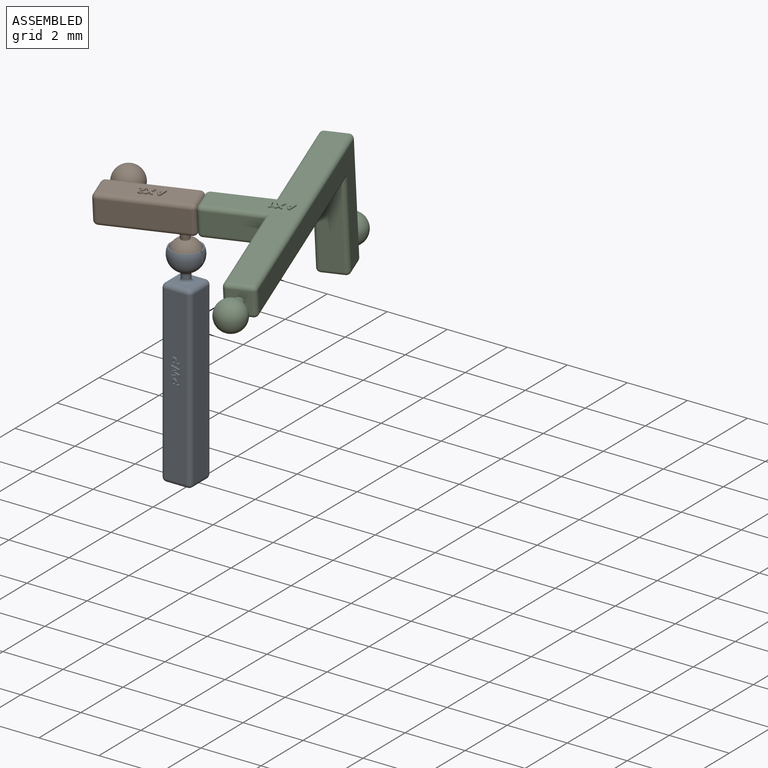
[diagram: assembled view]
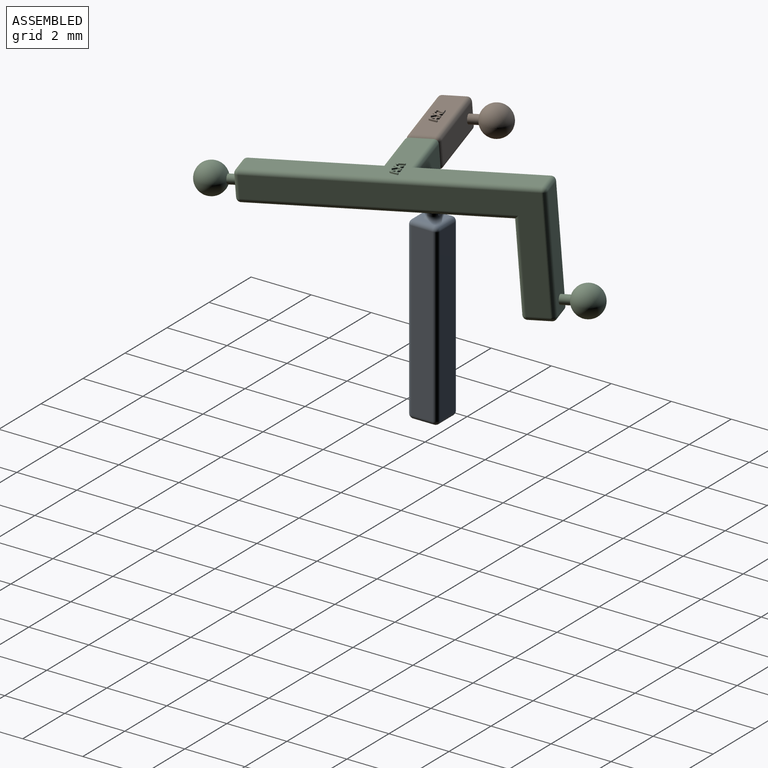
[diagram: assembled view, second angle]
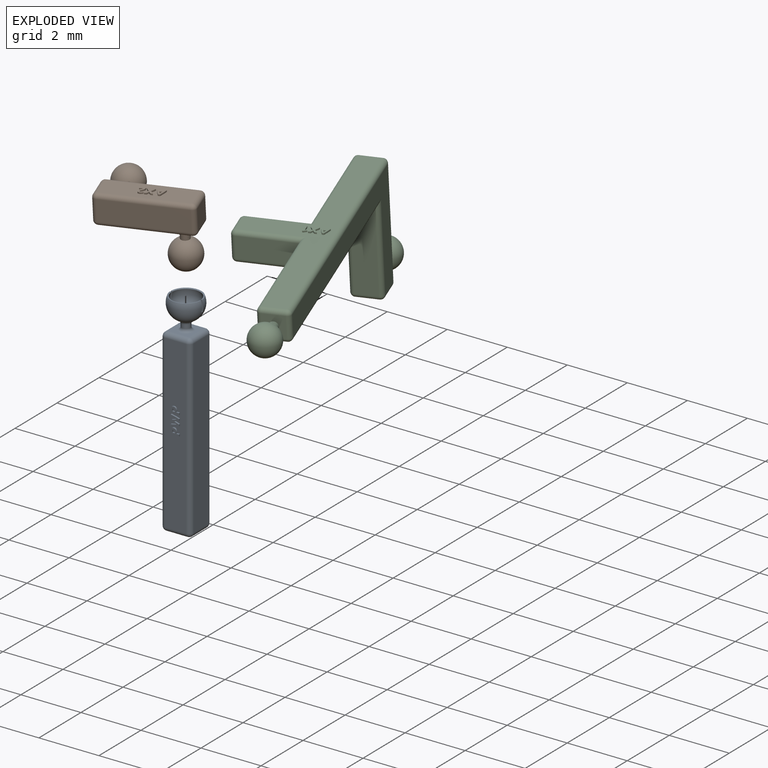
[diagram: exploded view]
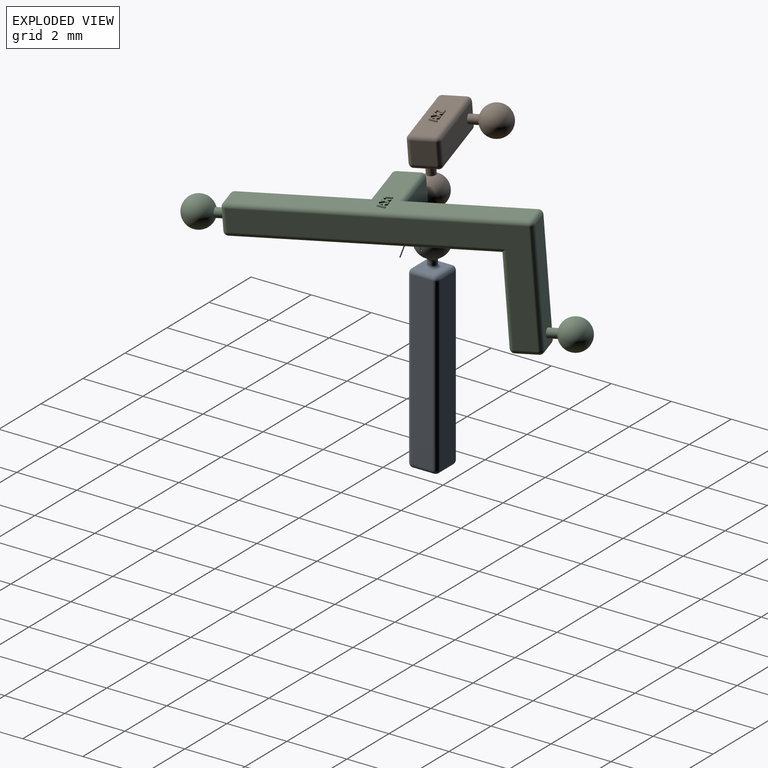
[diagram: exploded view, second angle]
FCSTD DOCUMENT  (FreeCAD 0.20R29177 (Git))
Label: assembly3wb_test
License: All rights reserved
LicenseURL: http://en.wikipedia.org/wiki/All_rights_reserved
objects: App::FeaturePython×25, Part::FeaturePython×16, App::Link×4
note: 15 computed .brp shape members not serialized (recipe doc carries the construction recipe); baked Part::Feature solids carry a one-line shape summary decoded from their .brp
EXTERNAL_REF file=pwp.FCStd obj=Body
EXTERNAL_REF file=ax2.FCStd obj=Body003
EXTERNAL_REF file=ax1.FCStd obj=Body004
EXTERNAL_REF file=radial_vein.FCStd obj=Body

FEATURE [App::Link] Link  label="Body"
  LinkPlacement = pos=(0.5,0,0.5) rot=(0,-1,0;1.5708rad)
  LinkedObject = -> <external pwp.FCStd>#Body
  Placement = pos=(0.5,0,0.5) rot=(0,-1,0;1.5708rad)
FEATURE [App::Link] Link001  label="AX2Body"
  LinkPlacement = pos=(-0.445138,-0.402361,5.6036) rot=(-0.002707,-0.040053,0.999194;3.44639rad)
  LinkedObject = -> <external ax2.FCStd>#Body003
  Placement = pos=(-0.445138,-0.402361,5.6036) rot=(-0.002707,-0.040053,0.999194;3.44639rad)
FEATURE [App::Link] Link002  label="CombinedArmBody"
  LinkPlacement = pos=(3.37043,0.796236,5.67282) rot=(0.050454,0.044065,-0.997754;1.2679rad)
  LinkedObject = -> <external ax1.FCStd>#Body004
  Placement = pos=(3.37043,0.796236,5.67282) rot=(0.050454,0.044065,-0.997754;1.2679rad)
FEATURE [App::Link] Link003  label="Body001"
  LinkPlacement = pos=(-6.34873,-3.26135,4.9153) rot=(0.2523,-0.017054,0.967499;0.315124rad)
  LinkedObject = -> <external radial_vein.FCStd>#Body
  Placement = pos=(-6.34873,-3.26135,4.9153) rot=(0.2523,-0.017054,0.967499;0.315124rad)
FEATURE [Part::FeaturePython] Parts  # WARN: FeaturePython — macro-defined, semantics opaque (R4)
  Group = -> [Link,Link001,Link002,Link003]
  GroupMode = 0
FEATURE [Part::FeaturePython] Assembly  # WARN: FeaturePython — macro-defined, semantics opaque (R4)
  AutoRelax = true
  BuildShape = 0
  Freeze = false
  Group = -> [Constraints,Elements,Parts]
  Verbose = false
  _SolverType = 1
  _Version = 1
FEATURE [App::FeaturePython] Constraints  # WARN: FeaturePython — macro-defined, semantics opaque (R4)
  Group = -> [Constraint,Constraint001,Constraint002,Constraint003,Constraint004,Constraint005,Constraint006,Constraint007]
  _Version = 1
FEATURE [App::FeaturePython] Elements  # WARN: FeaturePython — macro-defined, semantics opaque (R4)
  Group = -> [_Element,_Element001,_Element002,_Element003,_Element004,_Element005,_Element006,_Element007,_Element008,_Element009,_Element010,_Element011,_Element012,_Element013]
FEATURE [App::FeaturePython] Constraint  label="Locked"  # WARN: FeaturePython — macro-defined, semantics opaque (R4)
  Disabled = false
  Group = -> [ElementLink]
  _ConstraintType = 0
  _Parent = -> Constraints
FEATURE [App::FeaturePython] ElementLink  label="_Element"  # link proxy (typed FeaturePython)
  LinkTransform = true
  LinkedObject = -> _Element
  _Parent = -> Constraint
FEATURE [Part::FeaturePython] _Element  # link proxy (typed FeaturePython)
  Detach = false
  LinkTransform = true
  LinkedObject = -> Link [Pad002.Face98]
  _Parent = -> Elements
FEATURE [Part::FeaturePython] _Element001  label="DatumPoint@AX2Body@"  # link proxy (typed FeaturePython)
  Detach = false
  LinkTransform = true
  LinkedObject = -> Link001 [DatumPoint.Point]
  _Parent = -> Elements
FEATURE [App::FeaturePython] Constraint001  label="PointsCoincident"  # WARN: FeaturePython — macro-defined, semantics opaque (R4)
  Disabled = false
  Group = -> [ElementLink001,ElementLink002]
  _ConstraintType = 1
  _Parent = -> Constraints
FEATURE [App::FeaturePython] ElementLink001  label="DatumPoint@Body@"  # link proxy (typed FeaturePython)
  LinkTransform = true
  LinkedObject = -> _Element002
  _Parent = -> Constraint001
FEATURE [Part::FeaturePython] _Element002  label="DatumPoint@Body@"  # link proxy (typed FeaturePython)
  Detach = false
  LinkTransform = true
  LinkedObject = -> Link [DatumPoint.]
  _Parent = -> Elements
FEATURE [App::FeaturePython] ElementLink002  label="DatumPoint@AX2Body@001"  # link proxy (typed FeaturePython)
  LinkTransform = true
  LinkedObject = -> _Element003
  _Parent = -> Constraint001
FEATURE [Part::FeaturePython] _Element003  label="DatumPoint@AX2Body@001"  # link proxy (typed FeaturePython)
  Detach = false
  LinkTransform = true
  LinkedObject = -> Link001 [DatumPoint.]
  _Parent = -> Elements
FEATURE [App::FeaturePython] Constraint002  label="PlaneAlignment"  # WARN: FeaturePython — macro-defined, semantics opaque (R4)
  Angle = 0
  AnglePitch = 0
  AngleRoll = 0
  Cascade = false
  Disabled = false
  Group = -> [ElementLink003,ElementLink004]
  LockAngle = false
  _ConstraintType = 37
  _Parent = -> Constraints
FEATURE [App::FeaturePython] ElementLink003  label="_Element004"  # link proxy (typed FeaturePython)
  LinkTransform = true
  LinkedObject = -> _Element004
  _Parent = -> Constraint002
FEATURE [Part::FeaturePython] _Element004  # link proxy (typed FeaturePython)
  Detach = false
  LinkTransform = true
  LinkedObject = -> Link002 [Pad006.Face74]
  _Parent = -> Elements
FEATURE [App::FeaturePython] ElementLink004  label="_Element005"  # link proxy (typed FeaturePython)
  LinkTransform = true
  LinkedObject = -> _Element005
  _Parent = -> Constraint002
FEATURE [Part::FeaturePython] _Element005  # link proxy (typed FeaturePython)
  Detach = false
  LinkTransform = true
  LinkedObject = -> Link001 [Pad002.Face12]
  _Parent = -> Elements
FEATURE [App::FeaturePython] Constraint003  label="PlaneAlignment001"  # WARN: FeaturePython — macro-defined, semantics opaque (R4)
  Angle = 0
  AnglePitch = 0
  AngleRoll = 0
  Cascade = false
  Disabled = false
  Group = -> [ElementLink005,ElementLink006]
  LockAngle = false
  _ConstraintType = 37
  _Parent = -> Constraints
FEATURE [App::FeaturePython] ElementLink005  label="_Element006"  # link proxy (typed FeaturePython)
  LinkTransform = true
  LinkedObject = -> _Element006
  _Parent = -> Constraint003
FEATURE [Part::FeaturePython] _Element006  # link proxy (typed FeaturePython)
  Detach = false
  LinkTransform = true
  LinkedObject = -> Link001 [Pad002.Face9]
  _Parent = -> Elements
FEATURE [App::FeaturePython] ElementLink006  label="_Element007"  # link proxy (typed FeaturePython)
  LinkTransform = true
  LinkedObject = -> _Element007
  _Parent = -> Constraint003
FEATURE [Part::FeaturePython] _Element007  # link proxy (typed FeaturePython)
  Detach = false
  LinkTransform = true
  LinkedObject = -> Link002 [Pad006.Face73]
  _Parent = -> Elements
FEATURE [App::FeaturePython] Constraint004  label="PlaneAlignment002"  # WARN: FeaturePython — macro-defined, semantics opaque (R4)
  Angle = 0
  AnglePitch = 0
  AngleRoll = 0
  Cascade = false
  Disabled = false
  Group = -> [ElementLink007,ElementLink008]
  LockAngle = false
  _ConstraintType = 37
  _Parent = -> Constraints
FEATURE [App::FeaturePython] ElementLink007  label="_Element008"  # link proxy (typed FeaturePython)
  LinkTransform = true
  LinkedObject = -> _Element008
  _Parent = -> Constraint004
FEATURE [Part::FeaturePython] _Element008  # link proxy (typed FeaturePython)
  Detach = false
  LinkTransform = true
  LinkedObject = -> Link001 [Pad002.Face27]
  _Parent = -> Elements
FEATURE [App::FeaturePython] ElementLink008  label="_Element009"  # link proxy (typed FeaturePython)
  LinkTransform = true
  LinkedObject = -> _Element009
  _Parent = -> Constraint004
FEATURE [Part::FeaturePython] _Element009  # link proxy (typed FeaturePython)
  Detach = false
  LinkTransform = true
  LinkedObject = -> Link002 [Pad006.Face4]
  _Parent = -> Elements
FEATURE [App::FeaturePython] Constraint005  label="PlaneAlignment003"  # WARN: FeaturePython — macro-defined, semantics opaque (R4)
  Angle = 0
  AnglePitch = 0
  AngleRoll = 0
  Cascade = false
  Disabled = false
  Group = -> [ElementLink009,ElementLink010]
  LockAngle = false
  _ConstraintType = 37
  _Parent = -> Constraints
FEATURE [App::FeaturePython] ElementLink009  label="_Element010"  # link proxy (typed FeaturePython)
  LinkTransform = true
  LinkedObject = -> _Element010
  _Parent = -> Constraint005
FEATURE [Part::FeaturePython] _Element010  # link proxy (typed FeaturePython)
  Detach = false
  LinkTransform = true
  LinkedObject = -> Link002 [Pad006.Face70]
  _Parent = -> Elements
FEATURE [App::FeaturePython] ElementLink010  label="_Element011"  # link proxy (typed FeaturePython)
  LinkTransform = true
  LinkedObject = -> _Element011
  _Parent = -> Constraint005
FEATURE [Part::FeaturePython] _Element011  # link proxy (typed FeaturePython)
  Detach = false
  LinkTransform = true
  LinkedObject = -> Link003 [Pad001.Face12]
  _Parent = -> Elements
FEATURE [App::FeaturePython] Constraint006  label="PlaneAlignment004"  # WARN: FeaturePython — macro-defined, semantics opaque (R4)
  Angle = 0
  AnglePitch = 0
  AngleRoll = 0
  Cascade = false
  Disabled = false
  Group = -> [ElementLink011,ElementLink012]
  LockAngle = false
  _ConstraintType = 37
  _Parent = -> Constraints
FEATURE [App::FeaturePython] ElementLink011  label="_Element006"  # link proxy (typed FeaturePython)
  LinkTransform = true
  LinkedObject = -> _Element006
  _Parent = -> Constraint006
FEATURE [App::FeaturePython] ElementLink012  label="_Element012"  # link proxy (typed FeaturePython)
  LinkTransform = true
  LinkedObject = -> _Element012
  _Parent = -> Constraint006
FEATURE [Part::FeaturePython] _Element012  # link proxy (typed FeaturePython)
  Detach = false
  LinkTransform = true
  LinkedObject = -> Link003 [Pad001.Face1]
  _Parent = -> Elements
FEATURE [App::FeaturePython] Constraint007  label="PlaneAlignment005"  # WARN: FeaturePython — macro-defined, semantics opaque (R4)
  Angle = 0
  AnglePitch = 0
  AngleRoll = 0
  Cascade = false
  Disabled = false
  Group = -> [ElementLink013,ElementLink014]
  LockAngle = false
  _ConstraintType = 37
  _Parent = -> Constraints
FEATURE [App::FeaturePython] ElementLink013  label="_Element008"  # link proxy (typed FeaturePython)
  LinkTransform = true
  LinkedObject = -> _Element008
  _Parent = -> Constraint007
FEATURE [App::FeaturePython] ElementLink014  label="_Element013"  # link proxy (typed FeaturePython)
  LinkTransform = true
  LinkedObject = -> _Element013
  _Parent = -> Constraint007
FEATURE [Part::FeaturePython] _Element013  # link proxy (typed FeaturePython)
  Detach = false
  LinkTransform = true
  LinkedObject = -> Link003 [Pad001.Face7]
  _Parent = -> Elements

RESOLVED EXTERNAL PARTS (link-assembly join: the EXTERNAL_REF files above that resolve inside this repo's crawl, each included once):
---- part ax1.FCStd = doc fcstd_cabe9d6f2807 ----
FCSTD DOCUMENT  (FreeCAD 0.20R29177 (Git))
Label: ax1
License: All rights reserved
LicenseURL: http://en.wikipedia.org/wiki/All_rights_reserved
objects: PartDesign::Plane×8, Sketcher::SketchObject×8, PartDesign::Pad×7, PartDesign::Body×5, PartDesign::Fillet×4, PartDesign::Line×2, PartDesign::Revolution×2, PartDesign::Point×2, Spreadsheet::Sheet×1, Part::MultiFuse×1, PartDesign::FeatureBase×1, Part::Part2DObjectPython×1
note: 54 computed .brp shape members not serialized (recipe doc carries the construction recipe); baked Part::Feature solids carry a one-line shape summary decoded from their .brp

FEATURE [Spreadsheet::Sheet] Spreadsheet
  cells = A2=Design Parameters; A3=RefLength; B3(RefLength)==1mm; A4=RightArmLength; B4(RightArmLength)==5 * RefLength; A5=LeftArmLength; B5(LeftArmLength)==5 * RefLength; A6=VertArmLength; B6(VertArmLength)==4 * RefLength; A7=FrontArmLength; B7(FrontArmLength)==3 * RefLength; A8=BeamWidth; B8(BeamWidth)==1 * RefLength; A9=BeamHeight; B9(BeamHeight)==1 * RefLength; A10=BallJointDiam; B10(BallJointDiam)==1 * RefLength; A11=BallJointConnDiam; B11(BallJointConnDiam)==0.3 * RefLength; A12=BallJointConnLength; B12(BallJointConnLength)==0.3 * RefLength; A13=BallJointConnPadLength; B13(BallJointConnPadLength)==BallJointConnLength + 0.5 * BallJointDiam; A14=RightArmBaseDatumPlaneXOffset; B14(RightArmBaseDatumPlaneXOffset)==0.5 * BeamHeight; A15=RightArmTipDatumPlaneXOffset; B15(RightArmTipDatumPlaneXOffset)==RightArmLength - 0.5 * BeamHeight; A16=RightArmBallJointDatumPlaneXOffset; B16(RightArmBallJointDatumPlaneXOffset)==RightArmLength - 0.5 * BeamHeight + BallJointConnLength + 0.5 * BallJointDiam; A17=VertArmBaseDatumPlaneXOffet; B17(VertArmBaseDatumPlaneXOffet)==LeftArmLength - BeamHeight; A18=VertArmBaseDatumPlaneZOffset; B18(VertArmBaseDatumPlaneZOffset)==0.5 * BeamHeight; A19=VertArmTipDatumPlaneZOffset; B19(VertArmTipDatumPlaneZOffset)==VertArmLength - 0.5 * BeamHeight; A20=LeftArmBaseDatumPlaneXOffset; B20(LeftArmBaseDatumPlaneXOffset)==0.5 * BeamHeight; A21=LeftArmTipDatumPlaneXOffset; B21(LeftArmTipDatumPlaneXOffset)==LeftArmLength - 0.5 * BeamHeight; A22=LeftArmDatumPlaneZOffset; B22(LeftArmDatumPlaneZOffset)==0mm; A23=LeftBallJointConnDatumPlaneZOffset; B23(LeftBallJointConnDatumPlaneZOffset)==VertArmLength - BeamHeight; A24=LeftBallJointDatumPlaneXOffset; B24(LeftBallJointDatumPlaneXOffset)==LeftArmLength - 0.5 * BeamHeight + BallJointConnLength + 0.5 * BallJointDiam; A25=FrontArmBaseDatumPlaneYOffset; B25(FrontArmBaseDatumPlaneYOffset)==0.5 * BeamWidth; A26=EdgeFilletRadius; B26(EdgeFilletRadius)==0.15 * RefLength; A27=BallJointConnFilletRadius; B27(BallJointConnFilletRadius)==0.1 * RefLength; A28=LabelString; B28(LabelString)=AX1; A29=LabelSize; B29(LabelSize)==0.15 * RefLength; A30=LabelPadHeight; B30(LabelPadHeight)==0.05 * RefLength
FEATURE [PartDesign::Plane] DatumPlane  label="RightArmBaseDatumPlane"
  AttachmentOffset = pos=(0,0,-0.5) rot=(0,0,1;0rad)
  Length = 60
  MapMode = 5
  Placement = pos=(-0.5,1e-16,-1e-16) rot=(0.57735,0.57735,0.57735;2.0944rad)
  ResizeMode = 0
  Support = -> [YZ_Plane]
  Width = 60
  expr: .AttachmentOffset.Base.z = -Spreadsheet.RightArmBaseDatumPlaneXOffset
FEATURE [Sketcher::SketchObject] Sketch  label="RightArmSketch"
  FullyConstrained = true
  MapMode = 5
  Placement = pos=(-0.5,1e-16,-1e-16) rot=(0.57735,0.57735,0.57735;2.0944rad)
  Support = -> [DatumPlane]
  expr: Constraints[20] = Spreadsheet.EdgeFilletRadius
  expr: Constraints[21] = Spreadsheet.BeamHeight
  expr: Constraints[22] = Spreadsheet.BeamWidth
  sketch-geometry (10):
    g0: ArcOfCircle CenterX=-0.35 CenterY=0.35 CenterZ=0 NormalX=0 NormalY=0 NormalZ=1 AngleXU=0 Radius=0.15 StartAngle=1.5708 EndAngle=3.14159
    g1: LineSegment StartX=-0.35 StartY=0.5 StartZ=0 EndX=0.35 EndY=0.5 EndZ=0
    g2: ArcOfCircle CenterX=0.35 CenterY=0.35 CenterZ=0 NormalX=0 NormalY=0 NormalZ=1 AngleXU=0 Radius=0.15 StartAngle=0 EndAngle=1.5708
    g3: LineSegment StartX=0.5 StartY=0.35 StartZ=0 EndX=0.5 EndY=-0.35 EndZ=0
    g4: ArcOfCircle CenterX=0.35 CenterY=-0.35 CenterZ=0 NormalX=0 NormalY=0 NormalZ=1 AngleXU=0 Radius=0.15 StartAngle=4.71239 EndAngle=6.28319
    g5: LineSegment StartX=0.35 StartY=-0.5 StartZ=0 EndX=-0.35 EndY=-0.5 EndZ=0
    g6: ArcOfCircle CenterX=-0.35 CenterY=-0.35 CenterZ=0 NormalX=0 NormalY=0 NormalZ=1 AngleXU=0 Radius=0.15 StartAngle=3.14159 EndAngle=4.71239
    g7: LineSegment StartX=-0.5 StartY=-0.35 StartZ=0 EndX=-0.5 EndY=0.35 EndZ=0
    g8: GeomPoint X=-0.5 Y=0.5 Z=0
    g9: GeomPoint X=0.5 Y=-0.5 Z=0
  constraints (23):
    c: Tangent(g0,g1) = 1.5708
    c: Tangent(g1,g2) = 1.5708
    c: Tangent(g2,g3) = 1.5708
    c: Tangent(g3,g4) = 1.5708
    c: Tangent(g4,g5) = 1.5708
    c: Tangent(g5,g6) = 1.5708
    c: Tangent(g6,g7) = 1.5708
    c: Tangent(g7,g0) = 1.5708
    c: Horizontal(g1)
    c: Horizontal(g5)
    c: Vertical(g3)
    c: Vertical(g7)
    c: Equal(g0,g2)
    c: Equal(g2,g4)
    c: Equal(g4,g6)
    c: PointOnObject(g8,g1)
    c: PointOnObject(g8,g7)
    c: PointOnObject(g9,g3)
    c: PointOnObject(g9,g5)
    c: Symmetric(g0,g4,g-1)
    c: Radius(g0) = 0.15
    c: DistanceY(g4,g1) = 1
    c: DistanceX(g6,g3) = 1
FEATURE [PartDesign::Pad] Pad  label="RightArmPad"
  Direction = (1,-1e-16,1e-16)
  Length = 5
  Length2 = 10
  Placement = pos=(-0.5,0,0) rot=(0.57735,0.57735,0.57735;2.0944rad)
  Profile = -> Sketch
  ReferenceAxis = -> Sketch [N_Axis]
  Type = 0
  expr: Length = Spreadsheet.RightArmLength
FEATURE [PartDesign::Fillet] Fillet  label="RightArmEndFillet"
  Base = -> Pad [Face9,Face10]
  BaseFeature = -> Pad
  Placement = pos=(-0.5,0,0) rot=(0.57735,0.57735,0.57735;2.0944rad)
  Radius = 0.15
  SupportTransform = false
  UseAllEdges = false
  expr: Radius = Spreadsheet.EdgeFilletRadius
FEATURE [PartDesign::Body] Body  label="RightArmBody"
  Group = -> [DatumPlane,Sketch,Pad,Fillet]
  Origin = -> Origin
  Tip = -> Fillet
FEATURE [PartDesign::Plane] DatumPlane002  label="VertArmBaseDatumPlane"
  AttachmentOffset = pos=(-4,0,0.5) rot=(0,0,1;0rad)
  Length = 60
  MapMode = 5
  Placement = pos=(-4,0,0.5) rot=(0,0,1;0rad)
  ResizeMode = 0
  Support = -> [XY_Plane001]
  Width = 60
  expr: .AttachmentOffset.Base.x = -Spreadsheet.VertArmBaseDatumPlaneXOffet
  expr: .AttachmentOffset.Base.z = Spreadsheet.VertArmBaseDatumPlaneZOffset
FEATURE [Sketcher::SketchObject] Sketch001  label="VertArmSketch"
  FullyConstrained = true
  MapMode = 5
  Placement = pos=(-4,0,0.5) rot=(0,0,1;0rad)
  Support = -> [DatumPlane002]
  expr: Constraints[20] = Spreadsheet.EdgeFilletRadius
  expr: Constraints[21] = Spreadsheet.BeamHeight
  expr: Constraints[22] = Spreadsheet.BeamWidth
  sketch-geometry (10):
    g0: ArcOfCircle CenterX=-0.35 CenterY=0.35 CenterZ=0 NormalX=0 NormalY=0 NormalZ=1 AngleXU=0 Radius=0.15 StartAngle=1.5708 EndAngle=3.14159
    g1: LineSegment StartX=-0.35 StartY=0.5 StartZ=0 EndX=0.35 EndY=0.5 EndZ=0
    g2: ArcOfCircle CenterX=0.35 CenterY=0.35 CenterZ=0 NormalX=0 NormalY=0 NormalZ=1 AngleXU=0 Radius=0.15 StartAngle=3.23e-14 EndAngle=1.5708
    g3: LineSegment StartX=0.5 StartY=0.35 StartZ=0 EndX=0.5 EndY=-0.35 EndZ=0
    g4: ArcOfCircle CenterX=0.35 CenterY=-0.35 CenterZ=0 NormalX=0 NormalY=0 NormalZ=1 AngleXU=0 Radius=0.15 StartAngle=4.71239 EndAngle=6.28319
    g5: LineSegment StartX=0.35 StartY=-0.5 StartZ=0 EndX=-0.35 EndY=-0.5 EndZ=0
    g6: ArcOfCircle CenterX=-0.35 CenterY=-0.35 CenterZ=0 NormalX=0 NormalY=0 NormalZ=1 AngleXU=0 Radius=0.15 StartAngle=3.14159 EndAngle=4.71239
    g7: LineSegment StartX=-0.5 StartY=-0.35 StartZ=0 EndX=-0.5 EndY=0.35 EndZ=0
    g8: GeomPoint X=-0.5 Y=0.5 Z=0
    g9: GeomPoint X=0.5 Y=-0.5 Z=0
  constraints (23):
    c: Tangent(g0,g1) = 1.5708
    c: Tangent(g1,g2) = 1.5708
    c: Tangent(g2,g3) = 1.5708
    c: Tangent(g3,g4) = 1.5708
    c: Tangent(g4,g5) = 1.5708
    c: Tangent(g5,g6) = 1.5708
    c: Tangent(g6,g7) = 1.5708
    c: Tangent(g7,g0) = 1.5708
    c: Horizontal(g1)
    c: Horizontal(g5)
    c: Vertical(g3)
    c: Vertical(g7)
    c: Equal(g0,g2)
    c: Equal(g2,g4)
    c: Equal(g4,g6)
    c: PointOnObject(g8,g1)
    c: PointOnObject(g8,g7)
    c: PointOnObject(g9,g3)
    c: PointOnObject(g9,g5)
    c: Symmetric(g4,g0,g-1)
    c: Radius(g0) = 0.15
    c: DistanceX(g6,g3) = 1
    c: DistanceY(g4,g1) = 1
FEATURE [PartDesign::Pad] Pad001  label="VertArmPad"
  Direction = (0,0,1)
  Length = 4
  Length2 = 10
  Placement = pos=(-4,0,0.5) rot=(0,0,1;0rad)
  Profile = -> Sketch001
  ReferenceAxis = -> Sketch001 [N_Axis]
  Reversed = true
  Type = 0
  expr: Length = Spreadsheet.VertArmLength
FEATURE [PartDesign::Fillet] Fillet001  label="VertArmEndFillet"
  Base = -> Pad001 [Face9,Face10]
  BaseFeature = -> Pad001
  Placement = pos=(-4,0,0.5) rot=(0,0,1;0rad)
  Radius = 0.15
  SupportTransform = false
  UseAllEdges = false
  expr: Radius = Spreadsheet.EdgeFilletRadius
FEATURE [PartDesign::Body] Body001  label="VertArmBody"
  Group = -> [DatumPlane002,Sketch001,Pad001,Fillet001]
  Origin = -> Origin001
  Tip = -> Fillet001
FEATURE [PartDesign::Plane] DatumPlane003  label="LeftArmBaseDatumPlane"
  AttachmentOffset = pos=(0,0,0.5) rot=(0,0,1;0rad)
  Length = 60
  MapMode = 5
  Placement = pos=(0.5,-1e-16,1e-16) rot=(0.57735,0.57735,0.57735;2.0944rad)
  ResizeMode = 0
  Support = -> [YZ_Plane002]
  Width = 60
  expr: .AttachmentOffset.Base.y = -Spreadsheet.LeftArmDatumPlaneZOffset
  expr: .AttachmentOffset.Base.z = Spreadsheet.LeftArmBaseDatumPlaneXOffset
FEATURE [Sketcher::SketchObject] Sketch002  label="LeftArmSketch"
  FullyConstrained = true
  MapMode = 5
  Placement = pos=(0.5,-1e-16,1e-16) rot=(0.57735,0.57735,0.57735;2.0944rad)
  Support = -> [DatumPlane003]
  expr: Constraints[20] = Spreadsheet.EdgeFilletRadius
  expr: Constraints[21] = Spreadsheet.BeamHeight
  expr: Constraints[22] = Spreadsheet.BeamWidth
  sketch-geometry (10):
    g0: ArcOfCircle CenterX=-0.35 CenterY=0.35 CenterZ=0 NormalX=0 NormalY=0 NormalZ=1 AngleXU=0 Radius=0.15 StartAngle=1.5708 EndAngle=3.14159
    g1: LineSegment StartX=-0.35 StartY=0.5 StartZ=0 EndX=0.35 EndY=0.5 EndZ=0
    g2: ArcOfCircle CenterX=0.35 CenterY=0.35 CenterZ=0 NormalX=0 NormalY=0 NormalZ=1 AngleXU=0 Radius=0.15 StartAngle=3e-16 EndAngle=1.5708
    g3: LineSegment StartX=0.5 StartY=0.35 StartZ=0 EndX=0.5 EndY=-0.35 EndZ=0
    g4: ArcOfCircle CenterX=0.35 CenterY=-0.35 CenterZ=0 NormalX=0 NormalY=0 NormalZ=1 AngleXU=0 Radius=0.15 StartAngle=4.71239 EndAngle=6.28319
    g5: LineSegment StartX=0.35 StartY=-0.5 StartZ=0 EndX=-0.35 EndY=-0.5 EndZ=0
    g6: ArcOfCircle CenterX=-0.35 CenterY=-0.35 CenterZ=0 NormalX=0 NormalY=0 NormalZ=1 AngleXU=0 Radius=0.15 StartAngle=3.14159 EndAngle=4.71239
    g7: LineSegment StartX=-0.5 StartY=-0.35 StartZ=0 EndX=-0.5 EndY=0.35 EndZ=0
    g8: GeomPoint X=-0.5 Y=0.5 Z=0
    g9: GeomPoint X=0.5 Y=-0.5 Z=0
  constraints (23):
    c: Tangent(g0,g1) = 1.5708
    c: Tangent(g1,g2) = 1.5708
    c: Tangent(g2,g3) = 1.5708
    c: Tangent(g3,g4) = 1.5708
    c: Tangent(g4,g5) = 1.5708
    c: Tangent(g5,g6) = 1.5708
    c: Tangent(g6,g7) = 1.5708
    c: Tangent(g7,g0) = 1.5708
    c: Horizontal(g1)
    c: Horizontal(g5)
    c: Vertical(g3)
    c: Vertical(g7)
    c: Equal(g0,g2)
    c: Equal(g2,g4)
    c: Equal(g4,g6)
    c: PointOnObject(g8,g1)
    c: PointOnObject(g8,g7)
    c: PointOnObject(g9,g3)
    c: PointOnObject(g9,g5)
    c: Symmetric(g0,g4,g-1)
    c: Radius(g0) = 0.15
    c: DistanceY(g4,g1) = 1
    c: DistanceX(g6,g3) = 1
FEATURE [PartDesign::Pad] Pad002  label="LeftArmPad"
  Direction = (1,-1e-16,1e-16)
  Length = 5
  Length2 = 10
  Placement = pos=(0.5,0,0) rot=(0.57735,0.57735,0.57735;2.0944rad)
  Profile = -> Sketch002
  ReferenceAxis = -> Sketch002 [N_Axis]
  Reversed = true
  Type = 0
  expr: Length = Spreadsheet.LeftArmLength
FEATURE [PartDesign::Fillet] Fillet002  label="LeftArmEndFillet"
  Base = -> Pad002 [Face9,Face10]
  BaseFeature = -> Pad002
  Placement = pos=(0.5,0,0) rot=(0.57735,0.57735,0.57735;2.0944rad)
  Radius = 0.15
  SupportTransform = false
  UseAllEdges = false
  expr: Radius = Spreadsheet.EdgeFilletRadius
FEATURE [PartDesign::Body] Body002  label="LeftArmBody"
  Group = -> [DatumPlane003,Sketch002,Pad002,Fillet002]
  Origin = -> Origin002
  Tip = -> Fillet002
FEATURE [PartDesign::Plane] DatumPlane004  label="FrontArmBaseDatumPlane"
  AttachmentOffset = pos=(0,0,-0.5) rot=(0,0,1;0rad)
  Length = 60
  MapMode = 5
  Placement = pos=(0,0.5,1e-16) rot=(1,0,0;1.5708rad)
  ResizeMode = 0
  Support = -> [XZ_Plane003]
  Width = 60
  expr: .AttachmentOffset.Base.z = -Spreadsheet.FrontArmBaseDatumPlaneYOffset
FEATURE [Sketcher::SketchObject] Sketch003  label="FrontArmSketch"
  FullyConstrained = true
  MapMode = 5
  Placement = pos=(0,0.5,1e-16) rot=(1,0,0;1.5708rad)
  Support = -> [DatumPlane004]
  expr: Constraints[20] = Spreadsheet.EdgeFilletRadius
  expr: Constraints[21] = Spreadsheet.BeamHeight
  expr: Constraints[22] = Spreadsheet.BeamHeight
  sketch-geometry (10):
    g0: ArcOfCircle CenterX=-0.35 CenterY=0.35 CenterZ=0 NormalX=0 NormalY=0 NormalZ=1 AngleXU=0 Radius=0.15 StartAngle=1.5708 EndAngle=3.14159
    g1: LineSegment StartX=-0.35 StartY=0.5 StartZ=0 EndX=0.35 EndY=0.5 EndZ=0
    g2: ArcOfCircle CenterX=0.35 CenterY=0.35 CenterZ=0 NormalX=0 NormalY=0 NormalZ=1 AngleXU=0 Radius=0.15 StartAngle=-6.7943e-11 EndAngle=1.5708
    g3: LineSegment StartX=0.5 StartY=0.35 StartZ=0 EndX=0.5 EndY=-0.35 EndZ=0
    g4: ArcOfCircle CenterX=0.35 CenterY=-0.35 CenterZ=0 NormalX=0 NormalY=0 NormalZ=1 AngleXU=0 Radius=0.15 StartAngle=4.71239 EndAngle=6.28319
    g5: LineSegment StartX=0.35 StartY=-0.5 StartZ=0 EndX=-0.35 EndY=-0.5 EndZ=0
    g6: ArcOfCircle CenterX=-0.35 CenterY=-0.35 CenterZ=0 NormalX=0 NormalY=0 NormalZ=1 AngleXU=0 Radius=0.15 StartAngle=3.14159 EndAngle=4.71239
    g7: LineSegment StartX=-0.5 StartY=-0.35 StartZ=0 EndX=-0.5 EndY=0.35 EndZ=0
    g8: GeomPoint X=-0.5 Y=0.5 Z=0
    g9: GeomPoint X=0.5 Y=-0.5 Z=0
  constraints (23):
    c: Tangent(g0,g1) = 1.5708
    c: Tangent(g1,g2) = 1.5708
    c: Tangent(g2,g3) = 1.5708
    c: Tangent(g3,g4) = 1.5708
    c: Tangent(g4,g5) = 1.5708
    c: Tangent(g5,g6) = 1.5708
    c: Tangent(g6,g7) = 1.5708
    c: Tangent(g7,g0) = 1.5708
    c: Horizontal(g1)
    c: Horizontal(g5)
    c: Vertical(g3)
    c: Vertical(g7)
    c: Equal(g0,g2)
    c: Equal(g2,g4)
    c: Equal(g4,g6)
    c: PointOnObject(g8,g1)
    c: PointOnObject(g8,g7)
    c: PointOnObject(g9,g3)
    c: PointOnObject(g9,g5)
    c: Symmetric(g0,g4,g-1)
    c: Radius(g0) = 0.15
    c: DistanceX(g6,g3) = 1
    c: DistanceY(g4,g1) = 1
FEATURE [PartDesign::Pad] Pad003  label="FrontArmPad"
  Direction = (0,-1,-2e-16)
  Length = 3
  Length2 = 10
  Placement = pos=(0,0.5,0) rot=(1,0,0;1.5708rad)
  Profile = -> Sketch003
  ReferenceAxis = -> Sketch003 [N_Axis]
  Type = 0
  expr: Length = Spreadsheet.FrontArmLength
FEATURE [PartDesign::Fillet] Fillet003  label="FrontArmEndFillet"
  Base = -> Pad003 [Face9,Face10]
  BaseFeature = -> Pad003
  Placement = pos=(0,0.5,0) rot=(1,0,0;1.5708rad)
  Radius = 0.15
  SupportTransform = false
  UseAllEdges = false
  expr: Radius = Spreadsheet.EdgeFilletRadius
FEATURE [PartDesign::Body] Body003  label="FrontArmBody"
  Group = -> [DatumPlane004,Sketch003,Pad003,Fillet003]
  Origin = -> Origin003
  Tip = -> Fillet003
FEATURE [Part::MultiFuse] Fusion
  Shapes = -> [Body,Body001,Body002,Body003]
FEATURE [PartDesign::FeatureBase] BaseFeature  label="CombinedArmBaseFeature"
  BaseFeature = -> Fusion
FEATURE [PartDesign::Plane] DatumPlane005  label="RightArmTipDatumPlane"
  AttachmentOffset = pos=(0,0,4.5) rot=(0,0,1;0rad)
  Length = 60
  MapMode = 5
  Placement = pos=(4.5,-1e-15,1e-15) rot=(0.57735,0.57735,0.57735;2.0944rad)
  ResizeMode = 0
  Support = -> [YZ_Plane004]
  Width = 60
  expr: .AttachmentOffset.Base.z = Spreadsheet.RightArmTipDatumPlaneXOffset
FEATURE [Sketcher::SketchObject] Sketch004  label="RightArmBallJointConnSketch"
  FullyConstrained = true
  MapMode = 5
  Placement = pos=(4.5,-1e-15,1e-15) rot=(0.57735,0.57735,0.57735;2.0944rad)
  Support = -> [DatumPlane005]
  expr: Constraints[1] = Spreadsheet.BallJointConnDiam
  sketch-geometry (1):
    g0: Circle CenterX=0 CenterY=0 CenterZ=0 NormalX=0 NormalY=0 NormalZ=1 AngleXU=0 Radius=0.15
  constraints (2):
    c: Coincident(g0,g-1)
    c: Diameter(g0) = 0.3
FEATURE [PartDesign::Pad] Pad004  label="RightArmBallJointConnPad"
  BaseFeature = -> BaseFeature
  Direction = (1,-1e-16,1e-16)
  Length = 0.8
  Length2 = 10
  Profile = -> Sketch004
  ReferenceAxis = -> Sketch004 [N_Axis]
  Type = 0
  expr: Length = Spreadsheet.BallJointConnPadLength
FEATURE [PartDesign::Plane] DatumPlane006  label="RightArmBallJointDatumPlane"
  AttachmentOffset = pos=(0,0,5.3) rot=(0,0,1;0rad)
  Length = 60
  MapMode = 5
  Placement = pos=(5.3,-1.2e-15,1.2e-15) rot=(0.57735,0.57735,0.57735;2.0944rad)
  ResizeMode = 0
  Support = -> [YZ_Plane004]
  Width = 60
  expr: .AttachmentOffset.Base.z = Spreadsheet.RightArmBallJointDatumPlaneXOffset
FEATURE [Sketcher::SketchObject] Sketch005  label="RightArmBallJointSketch"
  FullyConstrained = true
  MapMode = 5
  Placement = pos=(5.3,-1.2e-15,1.2e-15) rot=(0.57735,0.57735,0.57735;2.0944rad)
  Support = -> [DatumPlane006]
  expr: Constraints[6] = Spreadsheet.BallJointDiam
  sketch-geometry (3):
    g0: ArcOfCircle CenterX=-8e-16 CenterY=0 CenterZ=0 NormalX=0 NormalY=0 NormalZ=1 AngleXU=0 Radius=0.5 StartAngle=1.5708 EndAngle=4.71239
    g1: LineSegment StartX=-8e-16 StartY=0.5 StartZ=0 EndX=-8e-16 EndY=0 EndZ=0
    g2: LineSegment StartX=-8e-16 StartY=-0.5 StartZ=0 EndX=-8e-16 EndY=0 EndZ=0
  constraints (8):
    c: Coincident(g1,g2)
    c: Coincident(g1,g-1)
    c: Vertical(g1)
    c: Vertical(g2)
    c: Coincident(g0,g2)
    c: Coincident(g0,g1)
    c: DistanceY(g0,g0) = 1
    c: Coincident(g0,g1)
FEATURE [PartDesign::Line] DatumLine  label="RightArmBallJointDatumLine"
  AttacherType = Attacher::AttachEngineLine
  Length = 20
  MapMode = 29
  Placement = pos=(5.3,-1.9e-15,1.2e-15) rot=(0,1,0;3.14159rad)
  ResizeMode = 0
  Support = -> [Sketch005]
FEATURE [PartDesign::Revolution] Revolution  label="RightArmBallJointRevolution"
  Angle = 360
  Axis = (0,-1e-16,-1)
  Base = (5.3,-1.9e-15,1.2e-15)
  BaseFeature = -> Pad004
  Profile = -> Sketch005
  ReferenceAxis = -> DatumLine
FEATURE [PartDesign::Plane] DatumPlane007  label="LeftBallJointConnDatumPlane"
  AttachmentOffset = pos=(0,-3,-4.5) rot=(0,0,1;0rad)
  Length = 60
  MapMode = 5
  Placement = pos=(-4.5,3e-16,-3) rot=(0.57735,0.57735,0.57735;2.0944rad)
  ResizeMode = 0
  Support = -> [YZ_Plane004]
  Width = 60
  expr: .AttachmentOffset.Base.y = -Spreadsheet.LeftBallJointConnDatumPlaneZOffset
  expr: .AttachmentOffset.Base.z = -Spreadsheet.LeftArmTipDatumPlaneXOffset
FEATURE [Sketcher::SketchObject] Sketch006  label="LeftArmBallJointConnSketch"
  FullyConstrained = true
  MapMode = 5
  Placement = pos=(-4.5,3e-16,-3) rot=(0.57735,0.57735,0.57735;2.0944rad)
  Support = -> [DatumPlane007]
  expr: Constraints[1] = Spreadsheet.BallJointConnDiam
  sketch-geometry (1):
    g0: Circle CenterX=0 CenterY=0 CenterZ=0 NormalX=0 NormalY=0 NormalZ=1 AngleXU=0 Radius=0.15
  constraints (2):
    c: Coincident(g0,g-1)
    c: Diameter(g0) = 0.3
FEATURE [PartDesign::Pad] Pad005  label="LeftArmBallJointConnPad"
  BaseFeature = -> Revolution
  Direction = (1,-1e-16,1e-16)
  Length = 0.8
  Length2 = 10
  Profile = -> Sketch006
  ReferenceAxis = -> Sketch006 [N_Axis]
  Reversed = true
  Type = 0
  expr: Length = Spreadsheet.BallJointConnPadLength
FEATURE [PartDesign::Plane] DatumPlane008  label="LeftArmBallJointDatumPlane"
  AttachmentOffset = pos=(0,-3,-5.3) rot=(0,0,1;0rad)
  Length = 60
  MapMode = 5
  Placement = pos=(-5.3,5e-16,-3) rot=(0.57735,0.57735,0.57735;2.0944rad)
  ResizeMode = 0
  Support = -> [YZ_Plane004]
  Width = 60
  expr: .AttachmentOffset.Base.y = -Spreadsheet.LeftBallJointConnDatumPlaneZOffset
  expr: .AttachmentOffset.Base.z = -Spreadsheet.LeftBallJointDatumPlaneXOffset
FEATURE [Sketcher::SketchObject] Sketch007  label="LeftArmBallJointSketch"
  FullyConstrained = true
  MapMode = 5
  Placement = pos=(-5.3,5e-16,-3) rot=(0.57735,0.57735,0.57735;2.0944rad)
  Support = -> [DatumPlane008]
  expr: Constraints[7] = Spreadsheet.BallJointDiam
  sketch-geometry (3):
    g0: ArcOfCircle CenterX=-8e-16 CenterY=0 CenterZ=0 NormalX=0 NormalY=0 NormalZ=1 AngleXU=0 Radius=0.5 StartAngle=1.5708 EndAngle=4.71239
    g1: LineSegment StartX=-8e-16 StartY=0.5 StartZ=0 EndX=-8e-16 EndY=0 EndZ=0
    g2: LineSegment StartX=-8e-16 StartY=-0.5 StartZ=0 EndX=-8e-16 EndY=0 EndZ=0
  constraints (8):
    c: Coincident(g0,g-1)
    c: Coincident(g0,g1)
    c: Coincident(g2,g0)
    c: Coincident(g2,g0)
    c: Coincident(g1,g0)
    c: Vertical(g1)
    c: Vertical(g2)
    c: DistanceY(g0,g0) = 1
FEATURE [PartDesign::Line] DatumLine001  label="LeftArmBallJointDatumLine"
  AttacherType = Attacher::AttachEngineLine
  Length = 20
  MapMode = 29
  Placement = pos=(-5.3,-2e-16,-3) rot=(0,1,0;3.14159rad)
  ResizeMode = 0
  Support = -> [Sketch007]
FEATURE [PartDesign::Revolution] Revolution001  label="LeftArmBallJointRevolution"
  Angle = 360
  Axis = (0,-1e-16,-1)
  Base = (-5.3,-2e-16,-3)
  BaseFeature = -> Pad005
  Profile = -> Sketch007
  ReferenceAxis = -> DatumLine001
FEATURE [Part::Part2DObjectPython] ShapeString  label="LabelShapeString"  # Draft 2D object (typed FeaturePython)
  FontFile = ./font/Ubuntu-B.ttf
  MakeFace = true
  Placement = pos=(-0.15,0.2,0.5) rot=(0,0,-1;1.5708rad)
  Size = 0.15
  String = AX1
  Tracking = 0
  expr: .Placement.Base.x = -Spreadsheet.RefLength * 0.15
  expr: .Placement.Base.y = Spreadsheet.RefLength * 0.2
  expr: .Placement.Base.z = Spreadsheet.BeamHeight * 0.5
  expr: Size = Spreadsheet.LabelSize
  expr: String = Spreadsheet.LabelString
FEATURE [PartDesign::Pad] Pad006  label="LabelPad"
  BaseFeature = -> Revolution001
  Direction = (0,0,1)
  Length = 0.05
  Length2 = 10
  Profile = -> ShapeString
  ReferenceAxis = -> ShapeString [N_Axis]
  Type = 0
  expr: Length = Spreadsheet.LabelPadHeight
FEATURE [PartDesign::Point] DatumPoint  label="LeftBallJointDatumPoint"
  AttacherType = Attacher::AttachEnginePoint
  MapMode = 32
  Placement = pos=(-5.3,5e-16,-3) rot=(0.57735,0.57735,0.57735;2.0944rad)
  Support = -> [Sketch007]
FEATURE [PartDesign::Point] DatumPoint001  label="RightBallJointDatumPoint"
  AttacherType = Attacher::AttachEnginePoint
  MapMode = 32
  Placement = pos=(5.3,-1.2e-15,1.2e-15) rot=(0.57735,0.57735,0.57735;2.0944rad)
  Support = -> [Sketch005]
FEATURE [PartDesign::Body] Body004  label="CombinedArmBody"
  BaseFeature = -> Fusion
  Group = -> [BaseFeature,DatumPlane005,Sketch004,Pad004,DatumPlane006,Sketch005,DatumLine,Revolution,DatumPlane007,Sketch006,Pad005,DatumPlane008,Sketch007,DatumLine001,Revolution001,ShapeString,Pad006,DatumPoint,DatumPoint001]
  Origin = -> Origin004
  Tip = -> Pad006
---- part ax2.FCStd = doc fcstd_d78f3f50ea41 ----
FCSTD DOCUMENT  (FreeCAD 0.20R29177 (Git))
Label: ax2
License: All rights reserved
LicenseURL: http://en.wikipedia.org/wiki/All_rights_reserved
objects: PartDesign::Body×4, Sketcher::SketchObject×3, PartDesign::Pad×3, PartDesign::Fillet×2, PartDesign::FeatureBase×2, Spreadsheet::Sheet×1, PartDesign::Plane×1, PartDesign::Line×1, PartDesign::Revolution×1, Part::MultiFuse×1, Part::Part2DObjectPython×1, PartDesign::Point×1
note: 26 computed .brp shape members not serialized (recipe doc carries the construction recipe); baked Part::Feature solids carry a one-line shape summary decoded from their .brp

FEATURE [Spreadsheet::Sheet] Spreadsheet
  cells = A2=Reference ; A3=RefLength; B3(RefLength)==1mm; A5=Main Beam; A6=Length; B6(Length)==3 * RefLength; A7=Width; B7(Width)==1 * RefLength; A8=Height; B8(Height)==1 * RefLength; A9=EdgeFilletRadius; B9(EdgeFilletRadius)==0.15 * RefLength; A11=BallJoint Common; A12=ConnLength; B12(ConnLength)==0.3 * RefLength; A13=ConnDiameter; B13(ConnDiameter)==0.3 * RefLength; A14=BallDiameter; B14(BallDiameter)==1 * RefLength; A15=BallDatumPlanceZOffset; B15(BallDatumPlanceZOffset)==ConnLength + 0.5 * BallDiameter; A16=ConnPadLength; B16(ConnPadLength)==ConnLength + 0.5 * BallDiameter; A17=ConnFilletRadius; B17(ConnFilletRadius)==0.1 * RefLength; A19=BallJoint 1; A20=BallJoint1XPos; B20(BallJoint1XPos)==-0.5 * Length + 0.5 * BallDiameter; A21=BallJoint1YPos; B21(BallJoint1YPos)==0 * Width; A22=BallJoint1ZPos; B22(BallJoint1ZPos)==Height * -0.5; A24=BallJoint 2; A25=BallJoint2XPos; B25(BallJoint2XPos)==0.5 * Length - 0.5 * BallDiameter; A26=BallJoint2YPos; B26(BallJoint2YPos)==-0.5 * Width; A27=BallJoint2ZPos; B27(BallJoint2ZPos)==0 * Height; A29=Label; A30=LabelString; B30(LabelString)=AX2; A31=LabelSize; B31(LabelSize)==0.15 * RefLength; A32=LabelXPos; B32(LabelXPos)==-0.5 * RefLength; A33=LabelYPos; B33(LabelYPos)==-0.1 * RefLength; A34=LabelPadHeight; B34(LabelPadHeight)==0.05 * RefLength; A36=Ball 1 Center Point; A37=Ball1CenterX; B37(Ball1CenterX)==BallJoint1XPos; A38=Ball1CenterY; B38(Ball1CenterY)==BallJoint1YPos; A39=Ball1CenterZ; B39(Ball1CenterZ)==BallJoint1ZPos - ConnLength - 0.5 * BallDiameter
FEATURE [Sketcher::SketchObject] Sketch  label="BeamSketch"
  FullyConstrained = true
  MapMode = 5
  Support = -> [XY_Plane]
  expr: Constraints[10] = Spreadsheet.Width
  expr: Constraints[9] = Spreadsheet.Length
  sketch-geometry (4):
    g0: LineSegment StartX=-1.5 StartY=0.5 StartZ=0 EndX=1.5 EndY=0.5 EndZ=0
    g1: LineSegment StartX=1.5 StartY=0.5 StartZ=0 EndX=1.5 EndY=-0.5 EndZ=0
    g2: LineSegment StartX=1.5 StartY=-0.5 StartZ=0 EndX=-1.5 EndY=-0.5 EndZ=0
    g3: LineSegment StartX=-1.5 StartY=-0.5 StartZ=0 EndX=-1.5 EndY=0.5 EndZ=0
  constraints (11):
    c: Coincident(g0,g1)
    c: Coincident(g1,g2)
    c: Coincident(g2,g3)
    c: Coincident(g3,g0)
    c: Horizontal(g0)
    c: Horizontal(g2)
    c: Vertical(g1)
    c: Vertical(g3)
    c: Symmetric(g0,g1,g-1)
    c: DistanceX(g0,g0) = 3
    c: DistanceY(g1,g1) = 1
FEATURE [PartDesign::Pad] Pad  label="BeamPad"
  Direction = (0,0,1)
  Length = 1
  Length2 = 10
  Midplane = true
  Profile = -> Sketch
  ReferenceAxis = -> Sketch [N_Axis]
  Type = 0
  expr: Length = Spreadsheet.Height
FEATURE [PartDesign::Fillet] Fillet
  Base = -> Pad [Edge10]
  BaseFeature = -> Pad
  Radius = 0.15
  SupportTransform = false
  UseAllEdges = true
  expr: Radius = Spreadsheet.EdgeFilletRadius
FEATURE [PartDesign::Body] Body  label="BeamBody"
  Group = -> [Sketch,Pad,Fillet]
  Origin = -> Origin
  Tip = -> Fillet
FEATURE [Sketcher::SketchObject] Sketch001  label="ConnSketch"
  FullyConstrained = true
  MapMode = 5
  Support = -> [XY_Plane001]
  expr: Constraints[1] = Spreadsheet.ConnDiameter
  sketch-geometry (1):
    g0: Circle CenterX=0 CenterY=0 CenterZ=0 NormalX=0 NormalY=0 NormalZ=1 AngleXU=0 Radius=0.15
  constraints (2):
    c: Coincident(g0,g-1)
    c: Diameter(g0) = 0.3
FEATURE [PartDesign::Pad] Pad001  label="ConnPad"
  Direction = (0,0,1)
  Length = 0.8
  Length2 = 10
  Profile = -> Sketch001
  ReferenceAxis = -> Sketch001 [N_Axis]
  Type = 0
  expr: Length = Spreadsheet.ConnPadLength
FEATURE [PartDesign::Plane] DatumPlane  label="BallDatumPlane"
  AttachmentOffset = pos=(0,0.8,0) rot=(0,0,1;0rad)
  Length = 60
  MapMode = 5
  Placement = pos=(0,-2e-16,0.8) rot=(1,0,0;1.5708rad)
  ResizeMode = 0
  Support = -> [XZ_Plane001]
  Width = 60
  expr: .AttachmentOffset.Base.y = Spreadsheet.BallDatumPlanceZOffset
FEATURE [Sketcher::SketchObject] Sketch002  label="BallSketch"
  FullyConstrained = true
  MapMode = 5
  Placement = pos=(0,-2e-16,0.8) rot=(1,0,0;1.5708rad)
  Support = -> [DatumPlane]
  expr: Constraints[7] = Spreadsheet.BallDiameter
  sketch-geometry (3):
    g0: ArcOfCircle CenterX=-1.2e-15 CenterY=0 CenterZ=0 NormalX=0 NormalY=0 NormalZ=1 AngleXU=0 Radius=0.5 StartAngle=1.5708 EndAngle=4.71239
    g1: LineSegment StartX=-1.2e-15 StartY=0.5 StartZ=0 EndX=-1.2e-15 EndY=0 EndZ=0
    g2: LineSegment StartX=-1.2e-15 StartY=0 StartZ=0 EndX=-1.2e-15 EndY=-0.5 EndZ=0
  constraints (8):
    c: Vertical(g1)
    c: Vertical(g2)
    c: Coincident(g0,g2)
    c: Coincident(g0,g1)
    c: Coincident(g0,g1)
    c: Coincident(g2,g0)
    c: Coincident(g0,g-1)
    c: DistanceY(g0,g0) = 1
FEATURE [PartDesign::Line] DatumLine
  AttacherType = Attacher::AttachEngineLine
  Length = 20
  MapMode = 29
  Placement = pos=(-1.2e-15,-2e-16,0.8) rot=(0,1,0;3.14159rad)
  ResizeMode = 0
  Support = -> [Sketch002]
FEATURE [PartDesign::Revolution] Revolution  label="BallRevolution"
  Angle = 360
  Axis = (0,2e-16,-1)
  Base = (-1.2e-15,-2e-16,0.8)
  BaseFeature = -> Pad001
  Profile = -> Sketch002
  ReferenceAxis = -> DatumLine
FEATURE [PartDesign::Body] Body001  label="BallJointBody1"
  Group = -> [Sketch001,Pad001,DatumPlane,Sketch002,DatumLine,Revolution]
  Origin = -> Origin001
  Placement = pos=(-1,0,-0.5) rot=(1,0,0;3.14159rad)
  Tip = -> Revolution
  expr: .Placement.Base.x = Spreadsheet.BallJoint1XPos
  expr: .Placement.Base.z = Spreadsheet.BallJoint1ZPos
FEATURE [PartDesign::FeatureBase] Clone
  BaseFeature = -> Body001
FEATURE [PartDesign::Body] Body002  label="BallJointBody2"
  BaseFeature = -> Body001
  Group = -> [Clone]
  Origin = -> Origin002
  Placement = pos=(1,-0.5,0) rot=(1,0,0;1.5708rad)
  Tip = -> Clone
  expr: .Placement.Base.x = Spreadsheet.BallJoint2XPos
  expr: .Placement.Base.y = Spreadsheet.BallJoint2YPos
  expr: .Placement.Base.z = Spreadsheet.BallJoint2ZPos
FEATURE [Part::MultiFuse] Fusion  label="BeamAndBallJointFusion"
  Shapes = -> [Body,Body001,Body002]
FEATURE [PartDesign::FeatureBase] BaseFeature
  BaseFeature = -> Fusion
FEATURE [PartDesign::Fillet] Fillet001  label="ConnFillet"
  Base = -> BaseFeature [Edge38,Edge27]
  BaseFeature = -> BaseFeature
  Radius = 0.1
  SupportTransform = false
  UseAllEdges = false
  expr: Radius = Spreadsheet.ConnFilletRadius
FEATURE [Part::Part2DObjectPython] ShapeString  label="LabelShapeString"  # Draft 2D object (typed FeaturePython)
  FontFile = <userpath>/work/cad/wing_hinge_cad_models/rev2/font/Ubuntu-B.ttf
  MakeFace = true
  Placement = pos=(-0.5,-0.1,0.5) rot=(0,0,1;0rad)
  Size = 0.15
  String = AX2
  Tracking = 0
  expr: .Placement.Base.x = Spreadsheet.LabelXPos
  expr: .Placement.Base.y = Spreadsheet.LabelYPos
  expr: Size = Spreadsheet.LabelSize
  expr: String = Spreadsheet.LabelString
FEATURE [PartDesign::Pad] Pad002  label="LabelPad"
  BaseFeature = -> Fillet001
  Direction = (0,0,1)
  Length = 0.05
  Length2 = 10
  Profile = -> ShapeString
  ReferenceAxis = -> ShapeString [N_Axis]
  Type = 0
  expr: Length = Spreadsheet.LabelPadHeight
FEATURE [PartDesign::Point] DatumPoint
  AttacherType = Attacher::AttachEnginePoint
  AttachmentOffset = pos=(-1,0,-1.3) rot=(0,0,1;0rad)
  MapMode = 32
  Placement = pos=(-1,0,-1.3) rot=(0,0,1;0rad)
  Support = -> [Pad002]
  expr: .AttachmentOffset.Base.x = Spreadsheet.Ball1CenterX
  expr: .AttachmentOffset.Base.y = Spreadsheet.Ball1CenterY
  expr: .AttachmentOffset.Base.z = Spreadsheet.Ball1CenterZ
FEATURE [PartDesign::Body] Body003  label="AX2Body"
  BaseFeature = -> Fusion
  Group = -> [BaseFeature,Fillet001,ShapeString,Pad002,DatumPoint]
  Origin = -> Origin003
  Tip = -> Pad002
---- part pwp.FCStd = doc fcstd_7d53688413b7 ----
FCSTD DOCUMENT  (FreeCAD 0.20R29177 (Git))
Label: pwp
License: All rights reserved
LicenseURL: http://en.wikipedia.org/wiki/All_rights_reserved
objects: Sketcher::SketchObject×6, PartDesign::Pad×3, PartDesign::Fillet×3, PartDesign::Plane×2, PartDesign::Line×2, Spreadsheet::Sheet×1, PartDesign::Revolution×1, PartDesign::Groove×1, PartDesign::Pocket×1, Part::Part2DObjectPython×1, PartDesign::Point×1, PartDesign::Body×1
note: 31 computed .brp shape members not serialized (recipe doc carries the construction recipe); baked Part::Feature solids carry a one-line shape summary decoded from their .brp

FEATURE [Spreadsheet::Sheet] Spreadsheet
  cells = A2=Design Parameters; A3=RefLength; B3(RefLength)==1mm; A4=Length; B4(Length)==6 * RefLength; A5=Width; B5(Width)==RefLength; A6=Height; B6(Height)==RefLength; A7=BallJointDiam; B7(BallJointDiam)==1 * RefLength; A8=BallJointDiamMargin; B8(BallJointDiamMargin)==0.005 * BallJointDiam; A9=BallJointCupThickness; B9(BallJointCupThickness)==0.05 * RefLength; A10=BallJointCupDiam; B10(BallJointCupDiam)==BallJointDiam + 2 * BallJointDiamMargin; A11=BallJointConnLength; B11(BallJointConnLength)==0.3 * RefLength; A12=BallJointConnDiam; B12(BallJointConnDiam)==0.3 * RefLength; A13=BallJointConnDatumPlaneOffset; B13(BallJointConnDatumPlaneOffset)==0.5 * Length; A14=BallJointDatumPlaneOffset; B14(BallJointDatumPlaneOffset)==BallJointConnDatumPlaneOffset + BallJointConnLength + 0.5 * BallJointCupThickness + 0.5 * BallJointDiam; A15=BallJointCupRevolveCutAngle; B15(BallJointCupRevolveCutAngle)==135deg; A16=BallJointCuptRevolveCutMargin; B16(BallJointCuptRevolveCutMargin)==0.1 * RefLength; A17=BallJointCupRevolveCutLength; B17(BallJointCupRevolveCutLength)==0.5 * BallJointDiam + BallJointCupThickness + BallJointCuptRevolveCutMargin; A18=BallJointCupSlitWidth; B18(BallJointCupSlitWidth)==0.05 * RefLength; A19=BallJointCupSlitDepth; B19(BallJointCupSlitDepth)==0.1 * RefLength; C19=Depth past midline; A20=EdgeFilletRadius; B20(EdgeFilletRadius)==0.15 * RefLength; A21=BallJointConnFilletRadius; B21(BallJointConnFilletRadius)==0.1 * RefLength; A22=BallJointCupFilletRadius; B22(BallJointCupFilletRadius)==0.012 * RefLength; A23=LabelString; B23(LabelString)=PWP; A24=LabelPadHeight; B24(LabelPadHeight)==0.05 * RefLength
FEATURE [Sketcher::SketchObject] Sketch  label="MainBeamSketch"
  FullyConstrained = true
  MapMode = 5
  Support = -> [XY_Plane]
  expr: Constraints[10] = Spreadsheet.Width
  expr: Constraints[9] = Spreadsheet.Length
  sketch-geometry (4):
    g0: LineSegment StartX=-3 StartY=0.5 StartZ=0 EndX=3 EndY=0.5 EndZ=0
    g1: LineSegment StartX=3 StartY=0.5 StartZ=0 EndX=3 EndY=-0.5 EndZ=0
    g2: LineSegment StartX=3 StartY=-0.5 StartZ=0 EndX=-3 EndY=-0.5 EndZ=0
    g3: LineSegment StartX=-3 StartY=-0.5 StartZ=0 EndX=-3 EndY=0.5 EndZ=0
  constraints (11):
    c: Coincident(g0,g1)
    c: Coincident(g1,g2)
    c: Coincident(g2,g3)
    c: Coincident(g3,g0)
    c: Horizontal(g0)
    c: Horizontal(g2)
    c: Vertical(g1)
    c: Vertical(g3)
    c: Symmetric(g0,g1,g-1)
    c: DistanceX(g2,g2) = 6
    c: DistanceY(g1,g1) = 1
FEATURE [PartDesign::Pad] Pad  label="MainBeamPad"
  Direction = (0,0,1)
  Length = 1
  Length2 = 10
  Midplane = true
  Profile = -> Sketch
  ReferenceAxis = -> Sketch [N_Axis]
  Type = 0
  expr: Length = Spreadsheet.Height
FEATURE [PartDesign::Plane] DatumPlane  label="BallJointConnDatumPlane"
  AttachmentOffset = pos=(0,0,3) rot=(0,0,1;0rad)
  Length = 60
  MapMode = 5
  Placement = pos=(3,-7e-16,7e-16) rot=(0.57735,0.57735,0.57735;2.0944rad)
  ResizeMode = 0
  Support = -> [YZ_Plane]
  Width = 60
  expr: .AttachmentOffset.Base.z = Spreadsheet.BallJointConnDatumPlaneOffset
FEATURE [Sketcher::SketchObject] Sketch001  label="BallJointConnSketch"
  FullyConstrained = true
  MapMode = 5
  Placement = pos=(3,-7e-16,7e-16) rot=(0.57735,0.57735,0.57735;2.0944rad)
  Support = -> [DatumPlane]
  expr: Constraints[1] = Spreadsheet.BallJointConnDiam
  sketch-geometry (1):
    g0: Circle CenterX=0 CenterY=0 CenterZ=0 NormalX=0 NormalY=0 NormalZ=1 AngleXU=0 Radius=0.15
  constraints (2):
    c: Coincident(g0,g-1)
    c: Diameter(g0) = 0.3
FEATURE [PartDesign::Pad] Pad001  label="BallJointConnPad"
  BaseFeature = -> Pad
  Direction = (1,-1e-16,1e-16)
  Length = 0.3
  Length2 = 10
  Profile = -> Sketch001
  ReferenceAxis = -> Sketch001 [N_Axis]
  Type = 0
  expr: Length = Spreadsheet.BallJointConnLength
FEATURE [PartDesign::Plane] DatumPlane001  label="BallJointDatumPlane"
  AttachmentOffset = pos=(0,0,3.825) rot=(0,1,0;1.5708rad)
  Length = 60
  MapMode = 5
  Placement = pos=(3.825,-8e-16,8e-16) rot=(0,0.707107,0.707107;3.14159rad)
  ResizeMode = 0
  Support = -> [YZ_Plane]
  Width = 60
  expr: .AttachmentOffset.Base.z = Spreadsheet.BallJointDatumPlaneOffset
FEATURE [Sketcher::SketchObject] Sketch002  label="BallJointCutSketch"
  FullyConstrained = true
  MapMode = 5
  Placement = pos=(3.825,-8e-16,8e-16) rot=(0,0.707107,0.707107;3.14159rad)
  Support = -> [DatumPlane001]
  expr: Constraints[14] = Spreadsheet.BallJointCupDiam
  sketch-geometry (6):
    g0: ArcOfCircle CenterX=-2e-16 CenterY=0 CenterZ=0 NormalX=0 NormalY=0 NormalZ=1 AngleXU=0 Radius=0.555 StartAngle=4.71239 EndAngle=7.85398
    g1: ArcOfCircle CenterX=-2e-16 CenterY=0 CenterZ=0 NormalX=0 NormalY=0 NormalZ=1 AngleXU=0 Radius=0.505 StartAngle=4.71239 EndAngle=7.85398
    g2: LineSegment StartX=-2e-16 StartY=0.505 StartZ=0 EndX=-2e-16 EndY=0 EndZ=0
    g3: LineSegment StartX=-2e-16 StartY=0 StartZ=0 EndX=-2e-16 EndY=-0.505 EndZ=0
    g4: LineSegment StartX=-2e-16 StartY=0.555 StartZ=0 EndX=-2e-16 EndY=0.505 EndZ=0
    g5: LineSegment StartX=-2e-16 StartY=-0.505 StartZ=0 EndX=-2e-16 EndY=-0.555 EndZ=0
  constraints (16):
    c: Coincident(g-1,g0)
    c: Coincident(g1,g0)
    c: Vertical(g2)
    c: Coincident(g2,g1)
    c: Coincident(g2,g0)
    c: Vertical(g3)
    c: Coincident(g3,g0)
    c: Coincident(g3,g1)
    c: Coincident(g4,g0)
    c: Coincident(g4,g1)
    c: Vertical(g4)
    c: Vertical(g5)
    c: Coincident(g5,g1)
    c: Coincident(g5,g0)
    c: DistanceY(g1,g1) = 1.01
    c: DistanceY(g4,g4) = 0.05
FEATURE [PartDesign::Line] DatumLine  label="BallJointCupDatumLine"
  AttacherType = Attacher::AttachEngineLine
  Length = 20
  MapMode = 29
  Placement = pos=(3.825,-8e-16,9e-16) rot=(0,1,0;3.14159rad)
  ResizeMode = 0
  Support = -> [Sketch002]
FEATURE [PartDesign::Revolution] Revolution  label="BallJointCuptRevolution"
  Angle = 360
  Axis = (4e-16,2e-16,-1)
  Base = (3.825,-8e-16,9e-16)
  BaseFeature = -> Pad001
  Profile = -> Sketch002
  ReferenceAxis = -> DatumLine
  Reversed = true
FEATURE [Sketcher::SketchObject] Sketch003  label="BallJointCutSketch001"
  FullyConstrained = true
  MapMode = 5
  Placement = pos=(3.825,-8e-16,8e-16) rot=(0,0.707107,0.707107;3.14159rad)
  Support = -> [DatumPlane001]
  expr: Constraints[6] = Spreadsheet.BallJointCupRevolveCutAngle * 0.5
  expr: Constraints[7] = Spreadsheet.BallJointCupRevolveCutLength
  sketch-geometry (3):
    g0: LineSegment StartX=-0.248744 StartY=0 StartZ=0 EndX=0 EndY=0 EndZ=0
    g1: LineSegment StartX=-0.248744 StartY=0.600522 StartZ=0 EndX=0 EndY=0 EndZ=0
    g2: LineSegment StartX=-0.248744 StartY=0.600522 StartZ=0 EndX=-0.248744 EndY=0 EndZ=0
  constraints (8):
    c: Horizontal(g0)
    c: Coincident(g0,g-1)
    c: Coincident(g0,g1)
    c: Vertical(g2)
    c: Coincident(g2,g1)
    c: Coincident(g2,g0)
    c: Angle(g1,g0,g0) = 1.1781
    c: Distance(g1) = 0.65
FEATURE [PartDesign::Line] DatumLine001  label="BallJointCutGrooveDatumLine"
  AttacherType = Attacher::AttachEngineLine
  Length = 20
  MapMode = 29
  Placement = pos=(3.825,-8e-16,8e-16) rot=(-0.57735,0.57735,0.57735;4.18879rad)
  ResizeMode = 0
  Support = -> [Sketch003]
FEATURE [PartDesign::Groove] Groove  label="BallJointCuptGroove"
  Angle = 360
  Axis = (-1,2e-16,-2e-16)
  Base = (3.825,-8e-16,8e-16)
  BaseFeature = -> Revolution
  Profile = -> Sketch003
  ReferenceAxis = -> DatumLine001
  Reversed = true
FEATURE [Sketcher::SketchObject] Sketch004  label="BallJointCupSlitSketch"
  FullyConstrained = true
  MapMode = 5
  Support = -> [XY_Plane]
  expr: Constraints[23] = Spreadsheet.BallJointCupSlitWidth
  expr: Constraints[24] = Spreadsheet.BallJointCupSlitDepth
  expr: Constraints[31] = Spreadsheet.BallJointCupDiam
  expr: Constraints[3] = Spreadsheet.BallJointDatumPlaneOffset
  sketch-geometry (12):
    g0: GeomPoint X=3.825 Y=-0.025 Z=0
    g1: LineSegment StartX=3.825 StartY=-0.025 StartZ=0 EndX=3.825 EndY=0 EndZ=0
    g2: LineSegment StartX=3.825 StartY=0 StartZ=0 EndX=3.825 EndY=0.025 EndZ=0
    g3: LineSegment StartX=3.7 StartY=0.025 StartZ=0 EndX=3.825 EndY=0.025 EndZ=0
    g4: LineSegment StartX=3.825 StartY=0.025 StartZ=0 EndX=4.835 EndY=0.025 EndZ=0
    g5: LineSegment StartX=4.835 StartY=0.025 StartZ=0 EndX=4.835 EndY=-0.025 EndZ=0
    g6: LineSegment StartX=4.835 StartY=-0.025 StartZ=0 EndX=3.825 EndY=-0.025 EndZ=0
    g7: LineSegment StartX=3.825 StartY=-0.025 StartZ=0 EndX=3.7 EndY=-0.025 EndZ=0
    g8: ArcOfCircle CenterX=3.7 CenterY=-1.76357e-11 CenterZ=0 NormalX=0 NormalY=0 NormalZ=1 AngleXU=0 Radius=0.025 StartAngle=1.5708 EndAngle=4.71239
    g9: LineSegment StartX=3.725 StartY=-1.76357e-11 StartZ=0 EndX=3.7 EndY=-1.76357e-11 EndZ=0
    g10: LineSegment StartX=3.7 StartY=0.025 StartZ=0 EndX=3.7 EndY=-1.76357e-11 EndZ=0
    g11: LineSegment StartX=3.7 StartY=-1.76357e-11 StartZ=0 EndX=3.7 EndY=-0.025 EndZ=0
  constraints (32):
    c: Coincident(g1,g2)
    c: Equal(g1,g2)
    c: Coincident(g1,g0)
    c: DistanceX(g-1,g1) = 3.825
    c: PointOnObject(g1,g-1)
    c: Vertical(g1)
    c: Vertical(g2)
    c: Coincident(g3,g2)
    c: Horizontal(g3)
    c: Coincident(g3,g4)
    c: Horizontal(g4)
    c: Coincident(g4,g5)
    c: Vertical(g5)
    c: Coincident(g5,g6)
    c: Coincident(g6,g0)
    c: Horizontal(g6)
    c: Coincident(g6,g7)
    c: Horizontal(g7)
    c: Coincident(g8,g3)
    c: Coincident(g8,g7)
    c: Coincident(g9,g8)
    c: Horizontal(g9)
    c: PointOnObject(g9,g8)
    c: DistanceY(g5,g4) = 0.05
    c: DistanceX(g9,g1) = 0.1
    c: Coincident(g8,g10)
    c: Coincident(g8,g11)
    c: Coincident(g10,g3)
    c: Vertical(g10)
    c: Coincident(g11,g7)
    c: Vertical(g11)
    c: DistanceX(g6,g6) = 1.01
FEATURE [PartDesign::Pocket] Pocket  label="BallJointCupSlitPocket"
  BaseFeature = -> Groove
  Direction = (0,0,-1)
  Length = 5
  Length2 = 5
  Midplane = true
  Profile = -> Sketch004
  ReferenceAxis = -> Sketch004 [N_Axis]
  Type = 1
FEATURE [PartDesign::Fillet] Fillet  label="MainBeamEdgeFillet"
  Base = -> Pocket [Face1,Face6,Face5,Face4]
  BaseFeature = -> Pocket
  Radius = 0.15
  SupportTransform = false
  UseAllEdges = false
  expr: Radius = Spreadsheet.EdgeFilletRadius
FEATURE [PartDesign::Fillet] Fillet001  label="BallJointConnFillet"
  Base = -> Fillet [Edge37,Edge57]
  BaseFeature = -> Fillet
  Radius = 0.1
  SupportTransform = false
  UseAllEdges = false
  expr: Radius = Spreadsheet.BallJointConnFilletRadius
FEATURE [PartDesign::Fillet] Fillet002  label="BallJointCupFillet"
  Base = -> Fillet001 [Edge72,Edge99,Edge110,Edge80]
  BaseFeature = -> Fillet001
  Radius = 0.012
  SupportTransform = false
  UseAllEdges = false
  expr: Radius = Spreadsheet.BallJointCupFilletRadius
FEATURE [Part::Part2DObjectPython] ShapeString  label="LabelShapeString"  # Draft 2D object (typed FeaturePython)
  FontFile = ./font/Ubuntu-B.ttf
  MakeFace = true
  Placement = pos=(0,-0.5,-0.15) rot=(1,0,0;1.5708rad)
  Size = 0.15
  String = PWP
  Tracking = 0
  expr: .Placement.Base.x = Spreadsheet.RefLength * 0
  expr: .Placement.Base.y = Spreadsheet.Width * -0.5
  expr: .Placement.Base.z = Spreadsheet.RefLength * -0.15
  expr: String = Spreadsheet.LabelString
FEATURE [PartDesign::Pad] Pad002  label="LabelPad"
  BaseFeature = -> Fillet002
  Direction = (0,-1,2e-16)
  Length = 0.05
  Length2 = 10
  Profile = -> ShapeString
  ReferenceAxis = -> ShapeString [N_Axis]
  Type = 0
  expr: Length = Spreadsheet.LabelPadHeight
FEATURE [Sketcher::SketchObject] Sketch005  label="BallJointCenterLocSketch"
  FullyConstrained = true
  MapMode = 5
  Placement = pos=(3.825,-8e-16,8e-16) rot=(0,0.707107,0.707107;3.14159rad)
  Support = -> [DatumPlane001]
  expr: Constraints[2] = Spreadsheet.BallJointDiam
  sketch-geometry (4):
    g0: GeomPoint X=0 Y=0 Z=0
    g1: Circle CenterX=0 CenterY=0 CenterZ=0 NormalX=0 NormalY=0 NormalZ=1 AngleXU=0 Radius=0.5
    g2: LineSegment StartX=-0.5 StartY=0 StartZ=0 EndX=0 EndY=0 EndZ=0
    g3: LineSegment StartX=0 StartY=0 StartZ=0 EndX=0.5 EndY=-2e-16 EndZ=0
  constraints (9):
    c: Coincident(g0,g-1)
    c: Coincident(g0,g1)
    c: Diameter(g1) = 1
    c: Coincident(g2,g3)
    c: Equal(g2,g3)
    c: Parallel(g3,g2)
    c: Coincident(g2,g1)
    c: Horizontal(g2)
    c: PointOnObject(g2,g1)
FEATURE [PartDesign::Point] DatumPoint
  AttacherType = Attacher::AttachEnginePoint
  MapMode = 32
  Placement = pos=(3.825,-8e-16,8e-16) rot=(0,0.707107,0.707107;3.14159rad)
  Support = -> [Sketch005]
FEATURE [PartDesign::Body] Body
  Group = -> [Sketch,Pad,DatumPlane,Sketch001,Pad001,DatumPlane001,Sketch002,DatumLine,Revolution,Sketch003,DatumLine001,Groove,Sketch004,Pocket,Fillet,Fillet001,Fillet002,ShapeString,Pad002,Sketch005,DatumPoint]
  Origin = -> Origin
  Tip = -> Pad002
